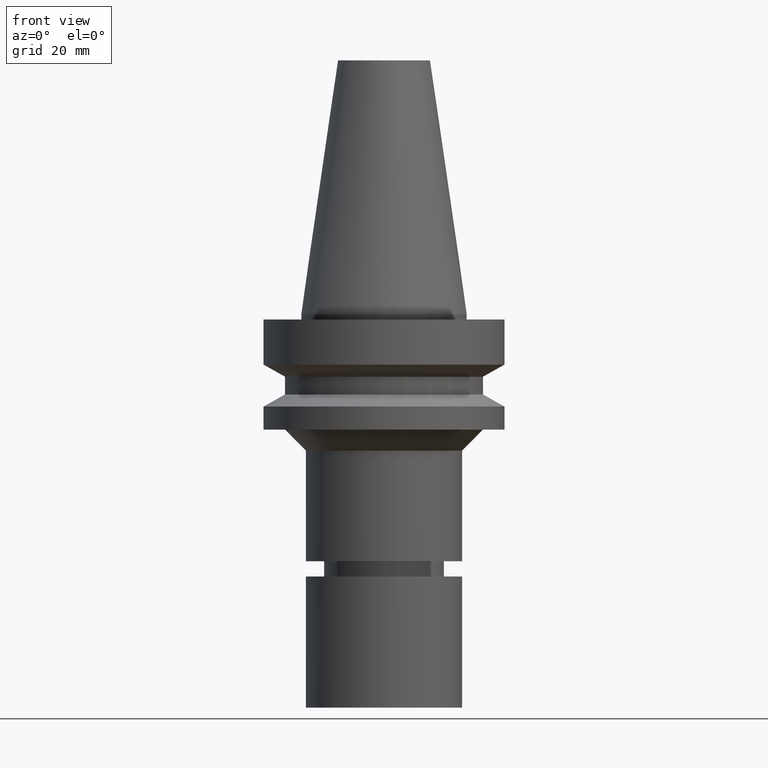
[diagram: clean part render]
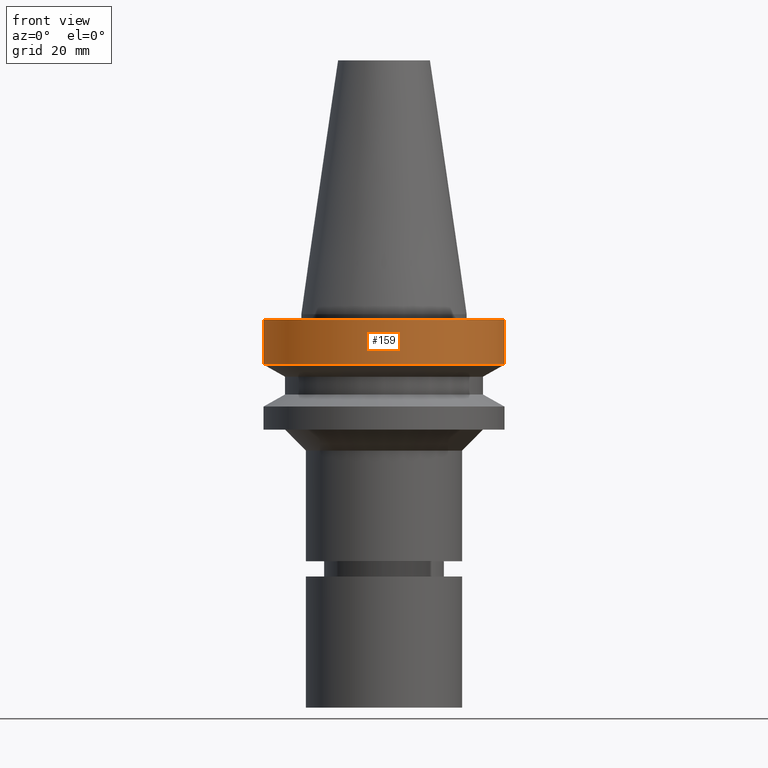
[diagram: same view with one face highlighted and labeled with its STEP entity id]
A machine part, front view. The second image highlights one B-rep face of the part: STEP entity #159.
In plain terms, the highlighted cylindrical surface (bore or boss wall) has radius 23 mm, axis along (0, 0, -1).
Its self-contained STEP definition (entity closure, byte-faithful):
#75=EDGE_CURVE('Unnamed[1]',#201,#201,#202,.T.);
#159=ADVANCED_FACE('Unnamed[1]',(#329,#330),#331,.T.);
#164=EDGE_CURVE('Unnamed[1]',#338,#338,#339,.T.);
#201=VERTEX_POINT('',#377);
#202=CIRCLE('',#378,23.0);
#329=FACE_BOUND('',#535,.T.);
#330=FACE_BOUND('',#536,.T.);
#331=CYLINDRICAL_SURFACE('',#537,23.0);
#338=VERTEX_POINT('',#546);
#339=CIRCLE('',#547,23.0);
#377=CARTESIAN_POINT('',(6.12323399573674E-017,23.0,-0.999999999999997));
#378=AXIS2_PLACEMENT_3D('',#580,#581,#582);
#535=EDGE_LOOP('',(#721));
#536=EDGE_LOOP('',(#722));
#537=AXIS2_PLACEMENT_3D('',#723,#724,#725);
#546=CARTESIAN_POINT('',(5.87830463590729E-016,23.0,-9.59999999999999));
#547=AXIS2_PLACEMENT_3D('',#732,#733,#734);
#580=CARTESIAN_POINT('',(6.12323399573677E-017,1.22464679914735E-016,-1.0));
#581=DIRECTION('',(6.12323399573677E-017,1.22464679914735E-016,-1.0));
#582=DIRECTION('',(-1.23259516440783E-032,1.0,1.22464679914735E-016));
#721=ORIENTED_EDGE('',*,*,#164,.F.);
#722=ORIENTED_EDGE('',*,*,#75,.T.);
#723=CARTESIAN_POINT('',(3.24531401774048E-016,6.49062803548097E-016,-5.3));
#724=DIRECTION('',(6.12323399573677E-017,1.22464679914735E-016,-1.0));
#725=DIRECTION('',(-1.23259516440783E-032,1.0,1.22464679914735E-016));
#732=CARTESIAN_POINT('',(5.87830463590729E-016,1.17566092718146E-015,-9.59999999999999));
#733=DIRECTION('',(6.12323399573677E-017,1.22464679914735E-016,-1.0));
#734=DIRECTION('',(-1.23259516440783E-032,1.0,1.22464679914735E-016));